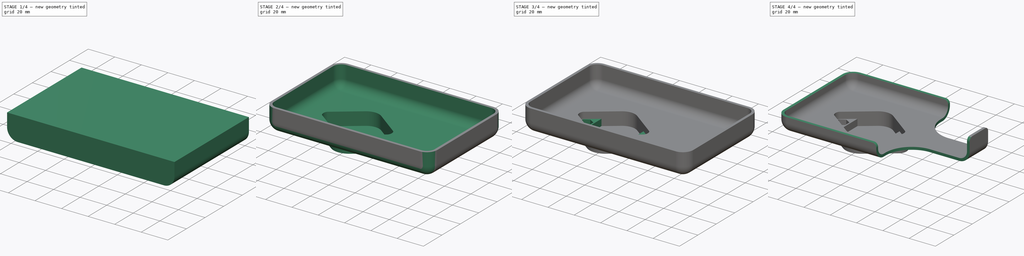
[diagram: build sequence overview — one tinted view per stage of 4, left to right]
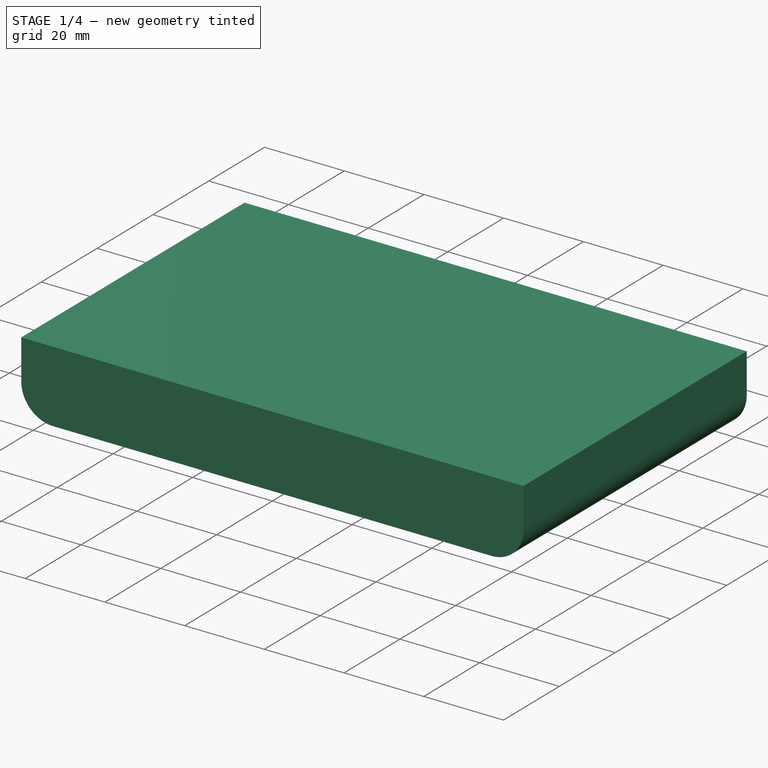
[diagram: stage 1 of 4 — iso view after this stage's code; geometry added in this stage tinted green]
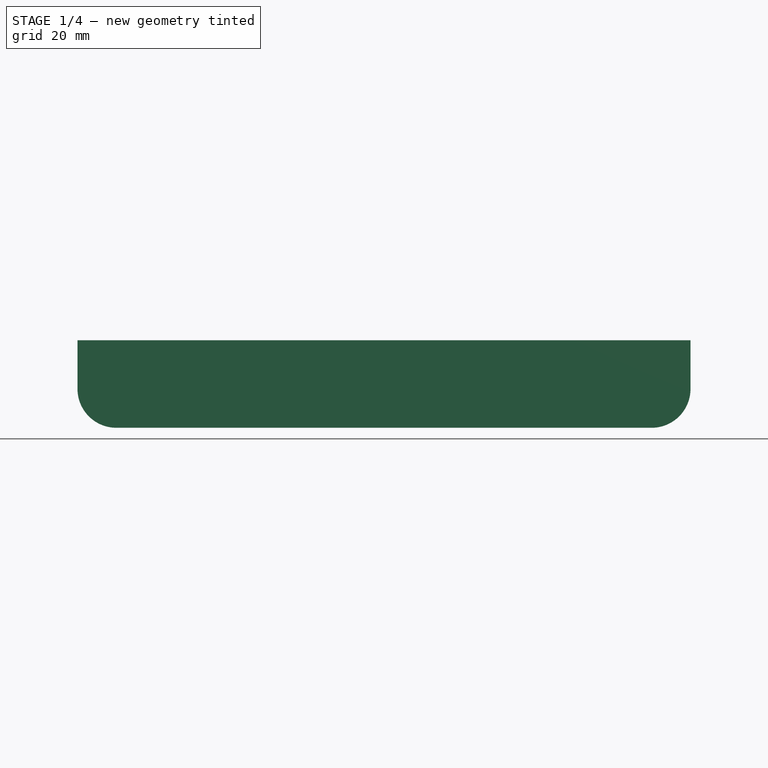
[diagram: stage 1 of 4 — front view after this stage's code; geometry added in this stage tinted green]
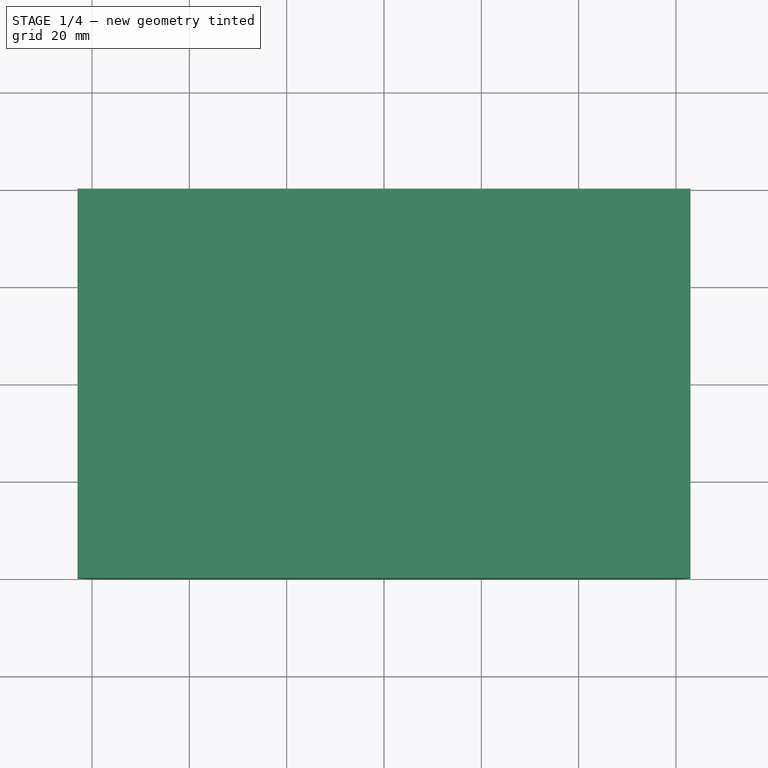
[diagram: stage 1 of 4 — top view after this stage's code; geometry added in this stage tinted green]
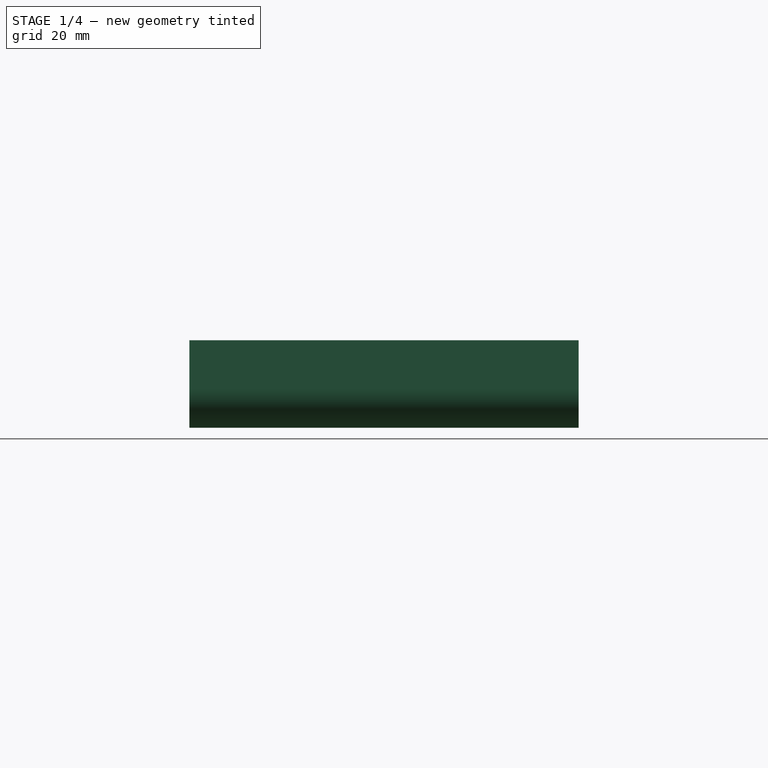
[diagram: stage 1 of 4 — right view after this stage's code; geometry added in this stage tinted green]
FCSTD DOCUMENT  (FreeCAD 0.21R33771 (Git))
Label: ex91
License: All rights reserved
LicenseURL: https://en.wikipedia.org/wiki/All_rights_reserved
objects: Sketcher::SketchObject×6, PartDesign::Fillet×4, PartDesign::Pocket×4, PartDesign::Pad×3, PartDesign::Thickness×1, PartDesign::Body×1
note: 31 computed .brp shape members not serialized (recipe doc carries the construction recipe); baked Part::Feature solids carry a one-line shape summary decoded from their .brp

FEATURE [Sketcher::SketchObject] Sketch
  FullyConstrained = true
  MapMode = 5
  Support = -> [XY_Plane]
  sketch-geometry (5):
    g0: LineSegment StartX=-63 StartY=-40 StartZ=0 EndX=-63 EndY=40 EndZ=0
    g1: LineSegment StartX=-63 StartY=40 StartZ=0 EndX=63 EndY=40 EndZ=0
    g2: LineSegment StartX=63 StartY=40 StartZ=0 EndX=63 EndY=-40 EndZ=0
    g3: LineSegment StartX=63 StartY=-40 StartZ=0 EndX=-63 EndY=-40 EndZ=0
    g4: GeomPoint X=0 Y=0 Z=0
  constraints (12):
    c: Coincident(g0,g1)
    c: Coincident(g1,g2)
    c: Coincident(g2,g3)
    c: Coincident(g3,g0)
    c: Horizontal(g1)
    c: Horizontal(g3)
    c: Vertical(g0)
    c: Vertical(g2)
    c: Symmetric(g1,g0,g4)
    c: Coincident(g4,g-1)
    c: DistanceX(g3,g3) = 126
    c: DistanceY(g0,g0) = 80
FEATURE [PartDesign::Pad] Pad
  Direction = (0,0,1)
  Length = 18
  Length2 = 10
  Profile = -> Sketch
  ReferenceAxis = -> Sketch [N_Axis]
  Type = 0
FEATURE [PartDesign::Fillet] Fillet
  Base = -> Pad [Edge9]
  BaseFeature = -> Pad
  Radius = 8
  SupportTransform = false
  UseAllEdges = false
FEATURE [PartDesign::Fillet] Fillet001
  Base = -> Fillet [Edge13]
  BaseFeature = -> Fillet
  Radius = 8
  SupportTransform = false
  UseAllEdges = false
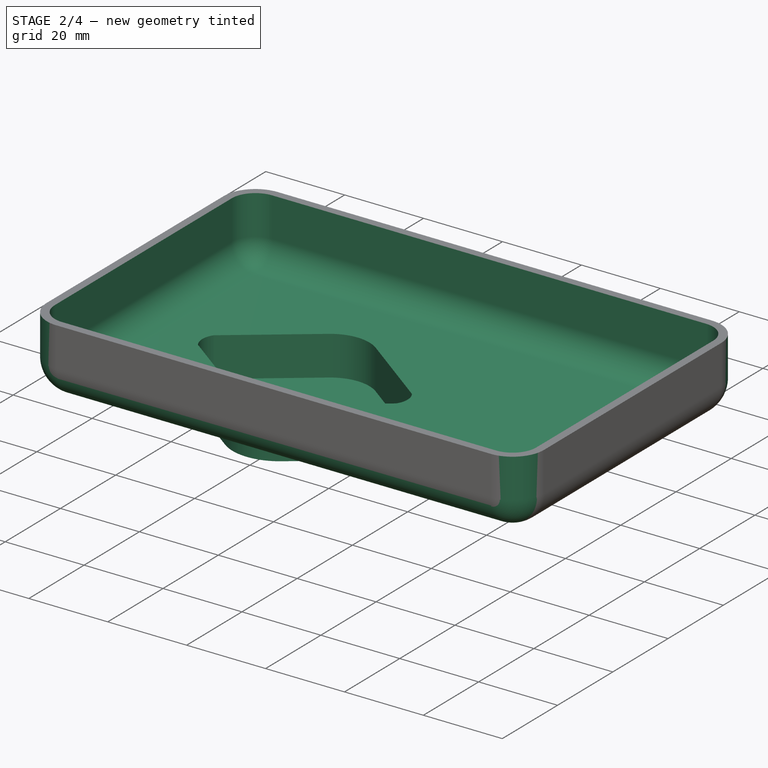
[diagram: stage 2 of 4 — iso view after this stage's code; geometry added in this stage tinted green]
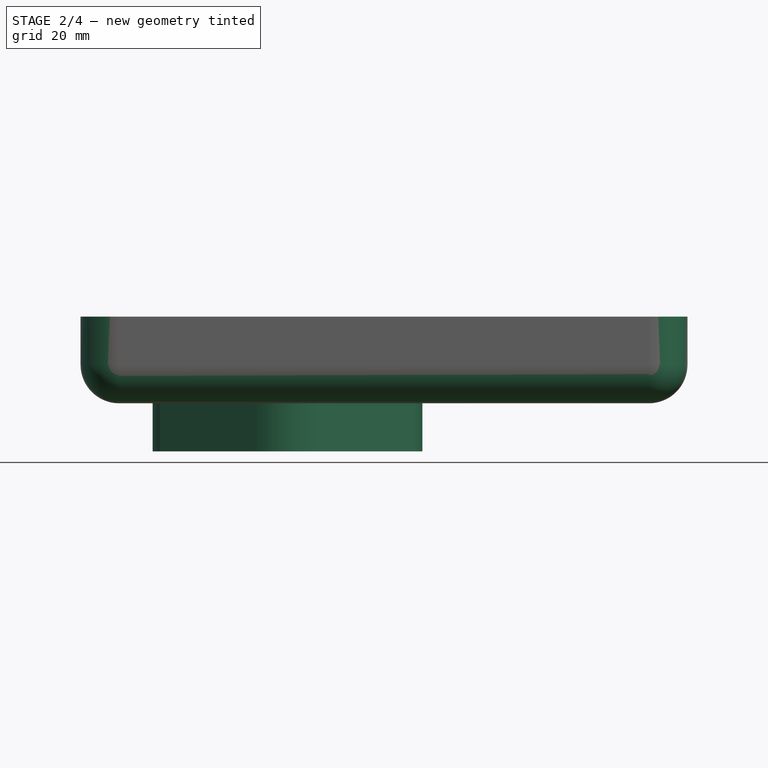
[diagram: stage 2 of 4 — front view after this stage's code; geometry added in this stage tinted green]
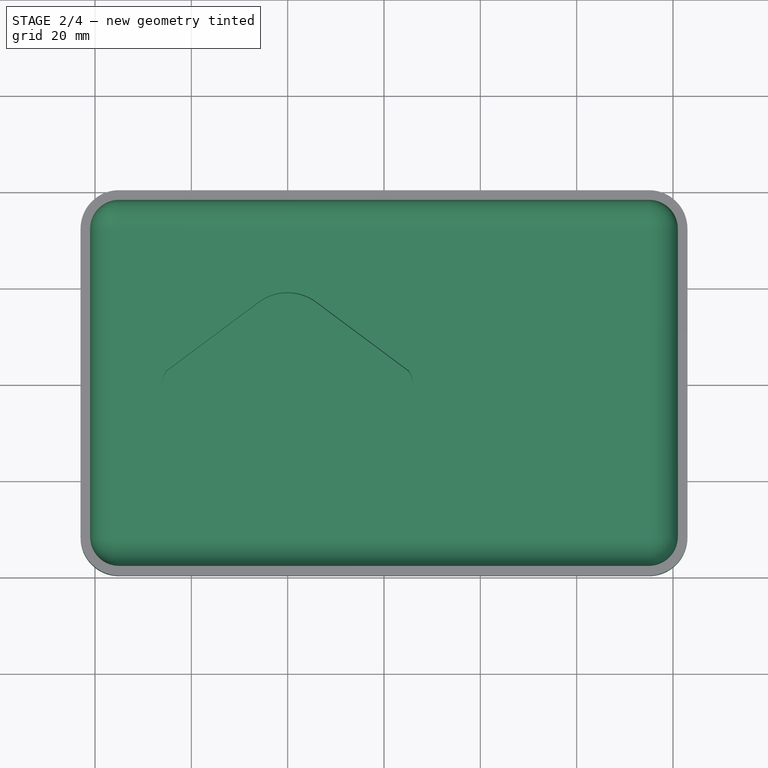
[diagram: stage 2 of 4 — top view after this stage's code; geometry added in this stage tinted green]
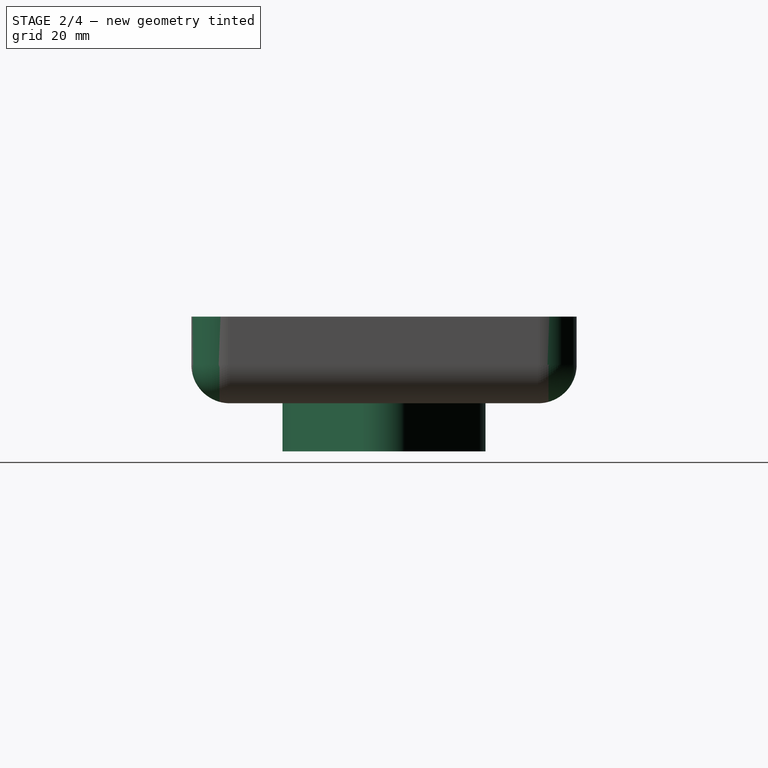
[diagram: stage 2 of 4 — right view after this stage's code; geometry added in this stage tinted green]
FEATURE [PartDesign::Fillet] Fillet002
  Base = -> Fillet001 [Edge1,Edge9]
  BaseFeature = -> Fillet001
  Radius = 8
  SupportTransform = false
  UseAllEdges = false
FEATURE [Sketcher::SketchObject] Sketch001
  ExternalGeometry = -> [Fillet002]
  FullyConstrained = false
  MapMode = 5
  Support = -> [XY_Plane]
  sketch-geometry (8):
    g0: ArcOfCircle CenterX=-41.034 CenterY=0 CenterZ=0 NormalX=0 NormalY=0 NormalZ=1 AngleXU=0 Radius=7 StartAngle=2.48373 EndAngle=3.79946
    g1: ArcOfCircle CenterX=0.966026 CenterY=0 CenterZ=0 NormalX=0 NormalY=0 NormalZ=1 AngleXU=0 Radius=7 StartAngle=5.62532 EndAngle=6.94105
    g2: ArcOfCircle CenterX=-20.034 CenterY=-9.07451 CenterZ=0 NormalX=0 NormalY=0 NormalZ=1 AngleXU=0 Radius=12 StartAngle=4.07253 EndAngle=5.35225
    g3: LineSegment StartX=-46.5731 StartY=4.28 StartZ=0 EndX=-27.199 EndY=18.7007 EndZ=0
    g4: LineSegment StartX=-46.5731 StartY=-4.28 StartZ=0 EndX=-27.199 EndY=-18.7007 EndZ=0
    g5: LineSegment StartX=-12.869 StartY=-18.7007 StartZ=0 EndX=6.50512 EndY=-4.28 EndZ=0
    g6: LineSegment StartX=-12.869 StartY=18.7007 StartZ=0 EndX=6.50512 EndY=4.28 EndZ=0
    g7: ArcOfCircle CenterX=-20.034 CenterY=9.07451 CenterZ=0 NormalX=0 NormalY=0 NormalZ=1 AngleXU=0 Radius=12 StartAngle=0.930936 EndAngle=2.21066
  constraints (26):
    c: PointOnObject(g0,g-1)
    c: Equal(g0,g1)
    c: Radius(g0) = 7
    c: Equal(g3,g5)
    c: Equal(g5,g6)
    c: Equal(g6,g4)
    c: Horizontal(g3,g6)
    c: Horizontal(g5,g4)
    c: Vertical(g3,g4)
    c: DistanceX(g0,g1) = 42
    c: Coincident(g7,g3)
    c: Tangent(g7,g6) = 1.5708
    c: Coincident(g2,g5)
    c: Coincident(g2,g4)
    c: Coincident(g0,g4)
    c: Coincident(g0,g3)
    c: Coincident(g1,g6)
    c: Coincident(g1,g5)
    c: DistanceY(g0,g0) = 8.56
    c: Radius(g7) = 12
    c: Radius(g2) = 12
    c: PointOnObject(g1,g-1)
    c: Vertical(g7,g2)
    c: Distance(g3,g6) = 14.33
    c: Distance(g2,g2) = 14.33
    c: Distance(g1,g1) = 8.56
FEATURE [PartDesign::Pad] Pad001
  BaseFeature = -> Fillet002
  Direction = (0,0,1)
  Length = 10
  Length2 = 10
  Profile = -> Sketch001
  ReferenceAxis = -> Sketch001 [N_Axis]
  Reversed = true
  Type = 0
FEATURE [PartDesign::Thickness] Thickness
  Base = -> Pad001 [Face2]
  BaseFeature = -> Pad001
  Intersection = false
  Join = 1
  Mode = 0
  Reversed = true
  SupportTransform = false
  Value = 2
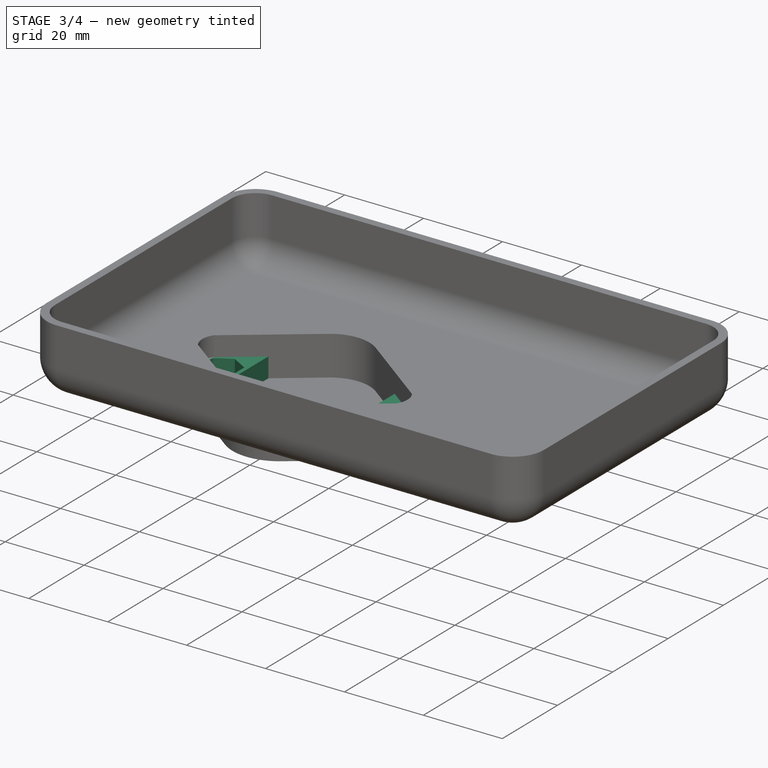
[diagram: stage 3 of 4 — iso view after this stage's code; geometry added in this stage tinted green]
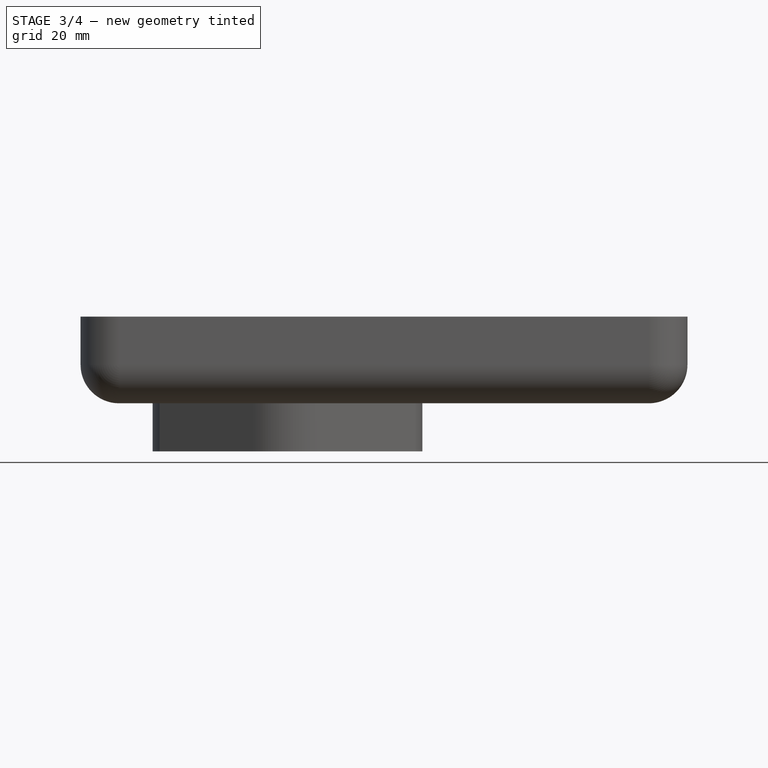
[diagram: stage 3 of 4 — front view after this stage's code; geometry added in this stage tinted green]
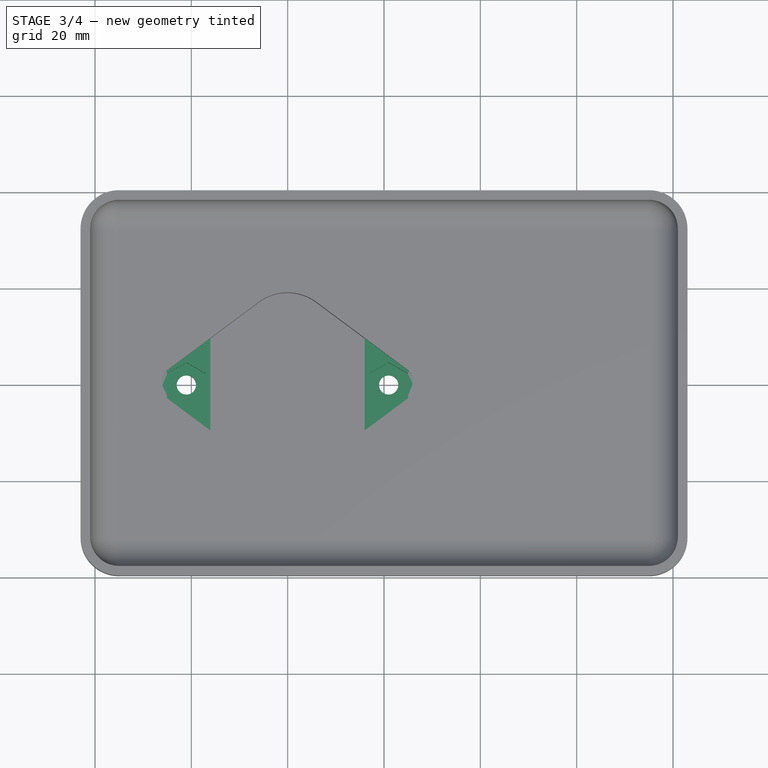
[diagram: stage 3 of 4 — top view after this stage's code; geometry added in this stage tinted green]
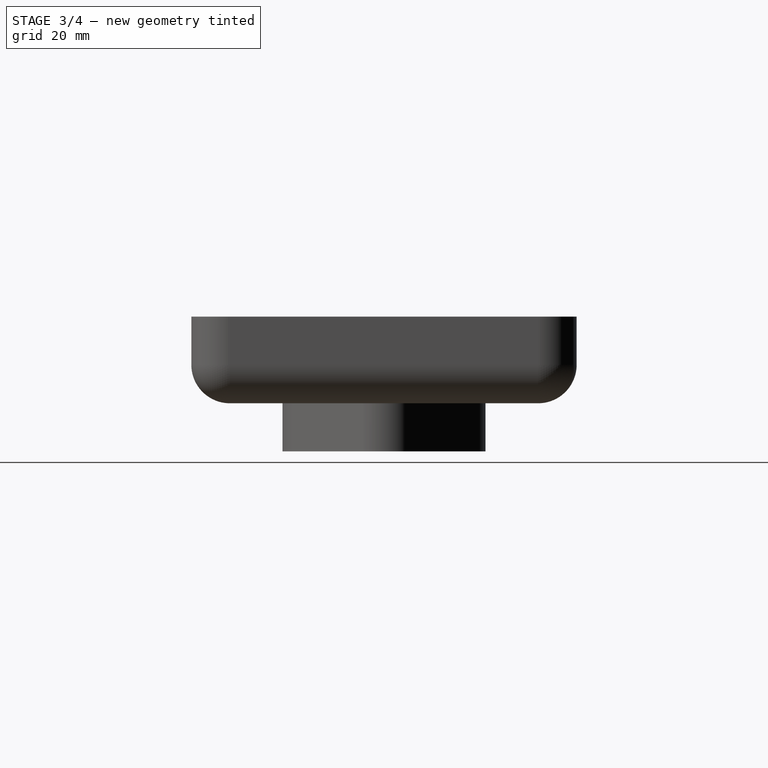
[diagram: stage 3 of 4 — right view after this stage's code; geometry added in this stage tinted green]
FEATURE [Sketcher::SketchObject] Sketch003
  ExternalGeometry = -> [Thickness]
  FullyConstrained = false
  MapMode = 5
  Support = -> [XY_Plane]
  sketch-geometry (8):
    g0: LineSegment StartX=-36.034 StartY=9.63132 StartZ=0 EndX=-36.034 EndY=-9.63132 EndZ=0
    g1: LineSegment StartX=-4.03397 StartY=9.63132 StartZ=0 EndX=-4.03397 EndY=-9.63132 EndZ=0
    g2: LineSegment StartX=-4.03397 StartY=9.63132 StartZ=0 EndX=5.07162 EndY=2.85379 EndZ=0
    g3: LineSegment StartX=5.07162 StartY=-2.85379 StartZ=0 EndX=-4.03397 EndY=-9.63132 EndZ=0
    g4: LineSegment StartX=-45.1396 StartY=-2.85378 StartZ=0 EndX=-36.034 EndY=-9.63132 EndZ=0
    g5: ArcOfCircle CenterX=-41.034 CenterY=8.47544e-07 CenterZ=0 NormalX=0 NormalY=0 NormalZ=1 AngleXU=0 Radius=5 StartAngle=2.53416 EndAngle=3.74902
    g6: ArcOfCircle CenterX=0.966026 CenterY=-1.7e-15 CenterZ=0 NormalX=0 NormalY=0 NormalZ=1 AngleXU=0 Radius=5 StartAngle=5.67576 EndAngle=6.89061
    g7: LineSegment StartX=-45.1396 StartY=2.85379 StartZ=0 EndX=-36.034 EndY=9.63132 EndZ=0
  constraints (20):
    c: PointOnObject(g0,g-8)
    c: PointOnObject(g0,g-7)
    c: PointOnObject(g1,g-5)
    c: PointOnObject(g1,g-6)
    c: Vertical(g1)
    c: Tangent(g-3,g1)
    c: Tangent(g0,g-4)
    c: Vertical(g0)
    c: Coincident(g2,g1)
    c: Coincident(g2,g-5)
    c: Coincident(g3,g-6)
    c: Coincident(g3,g1)
    c: Coincident(g4,g0)
    c: Coincident(g5,g4)
    c: Tangent(g5,g-4)
    c: Coincident(g6,g2)
    c: Coincident(g6,g3)
    c: Tangent(g6,g-3)
    c: Coincident(g7,g5)
    c: Coincident(g7,g0)
FEATURE [PartDesign::Pad] Pad002
  BaseFeature = -> Thickness
  Direction = (0,0,1)
  Length = 10
  Length2 = -3
  Profile = -> Sketch003
  ReferenceAxis = -> Sketch003 [N_Axis]
  Reversed = true
  Type = 4
FEATURE [Sketcher::SketchObject] Sketch004
  ExternalGeometry = -> [Pad002]
  FullyConstrained = true
  MapMode = 5
  Support = -> [XY_Plane]
  sketch-geometry (14):
    g0: LineSegment StartX=-37.034 StartY=-2.3094 StartZ=0 EndX=-37.034 EndY=2.3094 EndZ=0
    g1: LineSegment StartX=-37.034 StartY=2.3094 StartZ=0 EndX=-41.034 EndY=4.6188 EndZ=0
    g2: LineSegment StartX=-41.034 StartY=4.6188 StartZ=0 EndX=-45.034 EndY=2.3094 EndZ=0
    g3: LineSegment StartX=-45.034 StartY=2.3094 StartZ=0 EndX=-45.034 EndY=-2.3094 EndZ=0
    g4: LineSegment StartX=-45.034 StartY=-2.3094 StartZ=0 EndX=-41.034 EndY=-4.6188 EndZ=0
    g5: LineSegment StartX=-41.034 StartY=-4.6188 StartZ=0 EndX=-37.034 EndY=-2.3094 EndZ=0
    g6: Circle CenterX=-41.034 CenterY=0 CenterZ=0 NormalX=0 NormalY=0 NormalZ=1 AngleXU=0 Radius=4.6188
    g7: LineSegment StartX=4.96603 StartY=-2.3094 StartZ=0 EndX=4.96603 EndY=2.3094 EndZ=0
    g8: LineSegment StartX=4.96603 StartY=2.3094 StartZ=0 EndX=0.966026 EndY=4.6188 EndZ=0
    g9: LineSegment StartX=0.966026 StartY=4.6188 StartZ=0 EndX=-3.03397 EndY=2.3094 EndZ=0
    g10: LineSegment StartX=-3.03397 StartY=2.3094 StartZ=0 EndX=-3.03397 EndY=-2.3094 EndZ=0
    g11: LineSegment StartX=-3.03397 StartY=-2.3094 StartZ=0 EndX=0.966026 EndY=-4.6188 EndZ=0
    g12: LineSegment StartX=0.966026 StartY=-4.6188 StartZ=0 EndX=4.96603 EndY=-2.3094 EndZ=0
    g13: Circle CenterX=0.966026 CenterY=0 CenterZ=0 NormalX=0 NormalY=0 NormalZ=1 AngleXU=0 Radius=4.6188
  constraints (32):
    c: Coincident(g0,g1)
    c: Coincident(g1,g2)
    c: Coincident(g2,g3)
    c: Coincident(g3,g4)
    c: Coincident(g4,g5)
    c: Coincident(g5,g0)
    c: Equal(g0, g1-g5) x5
    c: PointOnObject(g0,g6)
    c: PointOnObject(g1,g6)
    c: PointOnObject(g2,g6)
    c: PointOnObject(g3,g6)
    c: PointOnObject(g4,g6)
    c: PointOnObject(g5,g6)
    c: Coincident(g6,g-4)
    c: Coincident(g7,g8)
    c: Coincident(g8,g9)
    c: Coincident(g9,g10)
    c: Coincident(g10,g11)
    c: Coincident(g11,g12)
    c: Coincident(g12,g7)
    c: Equal(g7, g8-g12) x5
    c: PointOnObject(g7,g13)
    c: PointOnObject(g8,g13)
    c: PointOnObject(g9,g13)
    c: PointOnObject(g10,g13)
    c: PointOnObject(g11,g13)
    c: PointOnObject(g12,g13)
    c: Coincident(g13,g-3)
    c: Vertical(g8,g13)
    c: Perpendicular(g-1,g3)
    c: Equal(g6,g13)
    c: DistanceX(g3,g0) = 8
FEATURE [PartDesign::Pocket] Pocket
  BaseFeature = -> Pad002
  Direction = (0,0,-1)
  Length = 7
  Length2 = 5
  Profile = -> Sketch004
  ReferenceAxis = -> Sketch004 [N_Axis]
  Type = 0
FEATURE [Sketcher::SketchObject] Sketch005
  ExternalGeometry = -> [Pocket]
  FullyConstrained = true
  MapMode = 5
  Placement = pos=(0,0,-7) rot=(0,0,1;0rad)
  Support = -> [Pocket]
  sketch-geometry (2):
    g0: Circle CenterX=0.966026 CenterY=0 CenterZ=0 NormalX=0 NormalY=0 NormalZ=1 AngleXU=0 Radius=2
    g1: Circle CenterX=-41.034 CenterY=0 CenterZ=0 NormalX=0 NormalY=0 NormalZ=1 AngleXU=0 Radius=2
  constraints (4):
    c: Coincident(g0,g-3)
    c: Coincident(g1,g-4)
    c: Equal(g1,g0)
    c: Radius(g1) = 2
FEATURE [PartDesign::Pocket] Pocket001
  BaseFeature = -> Pocket
  Direction = (0,0,-1)
  Length = 5
  Length2 = 5
  Profile = -> Sketch005
  ReferenceAxis = -> Sketch005 [N_Axis]
  Type = 1
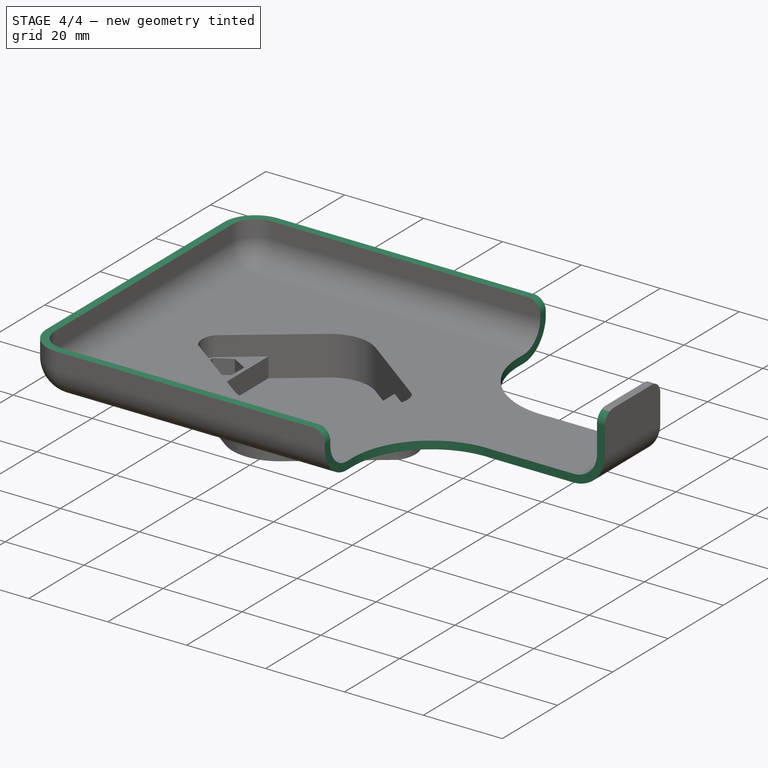
[diagram: stage 4 of 4 — iso view after this stage's code; geometry added in this stage tinted green]
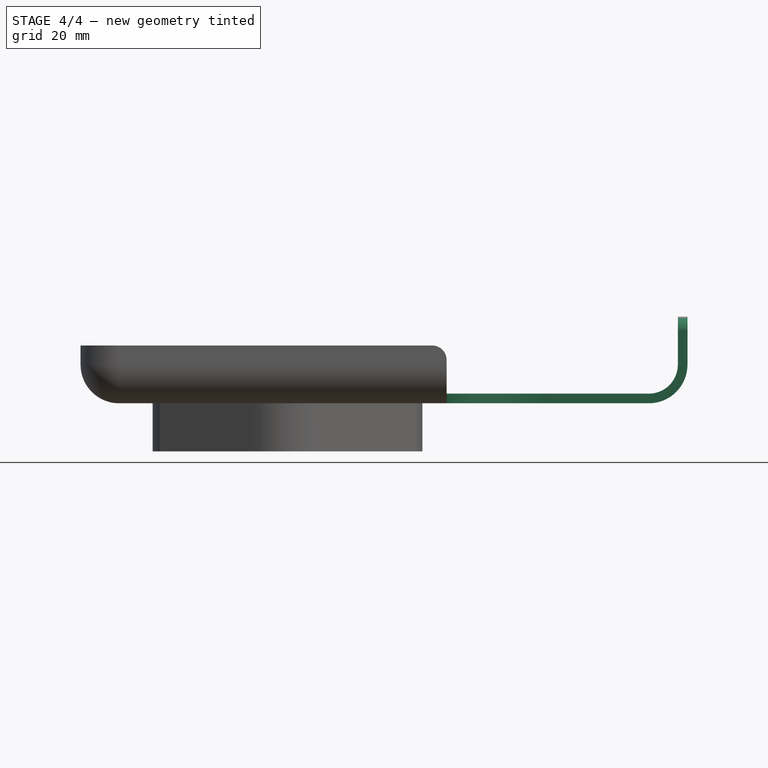
[diagram: stage 4 of 4 — front view after this stage's code; geometry added in this stage tinted green]
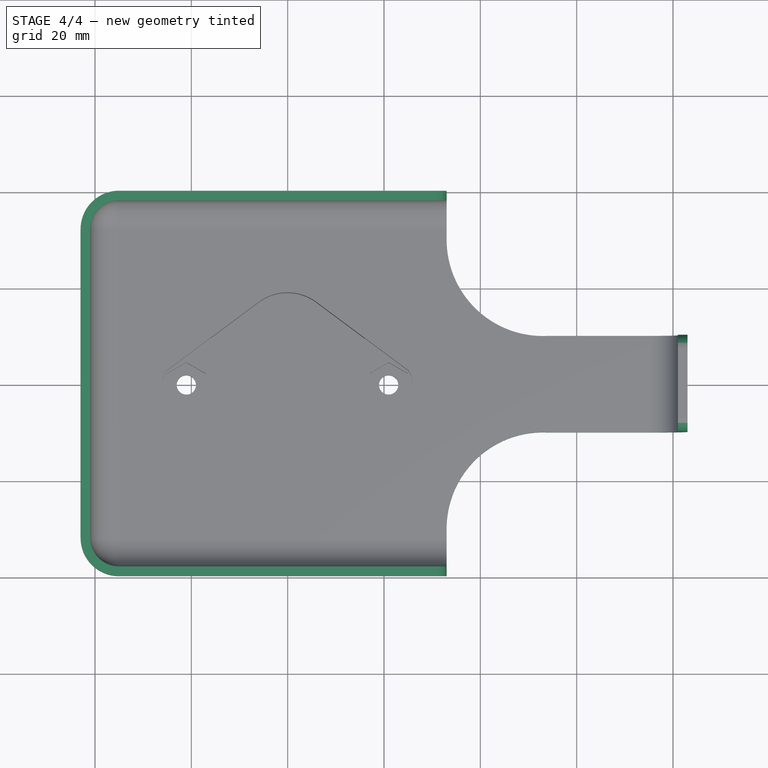
[diagram: stage 4 of 4 — top view after this stage's code; geometry added in this stage tinted green]
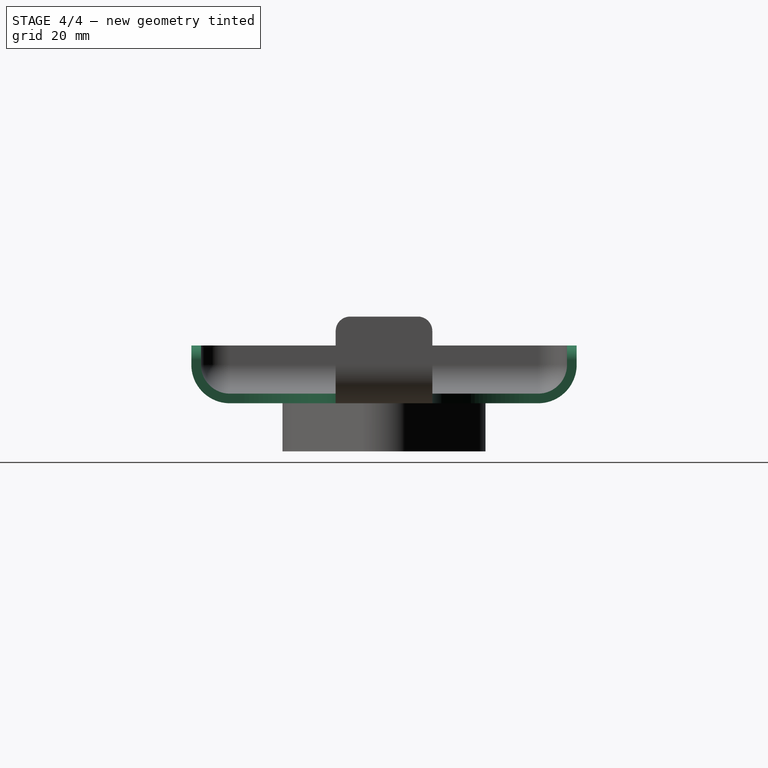
[diagram: stage 4 of 4 — right view after this stage's code; geometry added in this stage tinted green]
FEATURE [Sketcher::SketchObject] Sketch006
  ExternalGeometry = -> [Pocket001]
  FullyConstrained = false
  MapMode = 5
  Support = -> [XY_Plane]
  sketch-geometry (13):
    g0: ArcOfCircle CenterX=33 CenterY=30 CenterZ=0 NormalX=0 NormalY=0 NormalZ=1 AngleXU=0 Radius=20 StartAngle=3.14159 EndAngle=4.76819
    g1: ArcOfCircle CenterX=33 CenterY=-30 CenterZ=0 NormalX=0 NormalY=0 NormalZ=1 AngleXU=0 Radius=20 StartAngle=1.51499 EndAngle=3.14159
    g2: LineSegment StartX=34.1155 StartY=10.0311 StartZ=0 EndX=34.1155 EndY=-10.0311 EndZ=0
    g3: LineSegment StartX=34.1155 StartY=10.0311 StartZ=0 EndX=89.8215 EndY=10.0311 EndZ=0
    g4: LineSegment StartX=34.1155 StartY=-10.0311 StartZ=0 EndX=89.8215 EndY=-10.0311 EndZ=0
    g5: LineSegment StartX=110.137 StartY=54.3289 StartZ=0 EndX=110.137 EndY=-44.3562 EndZ=0
    g6: LineSegment StartX=89.8215 StartY=10.0311 StartZ=0 EndX=89.8215 EndY=-10.0311 EndZ=0
    g7: LineSegment StartX=13 StartY=-30 StartZ=0 EndX=13 EndY=-55.4648 EndZ=0
    g8: LineSegment StartX=13 StartY=-55.4648 StartZ=0 EndX=34.1969 EndY=-55.4648 EndZ=0
    g9: LineSegment StartX=34.1969 StartY=-55.4648 StartZ=0 EndX=110.137 EndY=-55.4648 EndZ=0
    g10: LineSegment StartX=110.137 StartY=-44.3562 StartZ=0 EndX=110.137 EndY=-55.4648 EndZ=0
    g11: LineSegment StartX=13 StartY=30 StartZ=0 EndX=13 EndY=54.3289 EndZ=0
    g12: LineSegment StartX=13 StartY=54.3289 StartZ=0 EndX=110.137 EndY=54.3289 EndZ=0
  constraints (29):
    c: Radius(g0) = 20
    c: Distance(g0,g-3) = 30
    c: DistanceY(g-1,g0) = 30
    c: Equal(g1,g0)
    c: DistanceY(g1,g-1) = 30
    c: Distance(g1,g-3) = 30
    c: Perpendicular(g-1,g2)
    c: Coincident(g3,g2)
    c: Horizontal(g3)
    c: Coincident(g4,g2)
    c: Horizontal(g4)
    c: Vertical(g5)
    c: Coincident(g6,g3)
    c: Coincident(g6,g4)
    c: Coincident(g1,g2)
    c: Coincident(g0,g2)
    c: Coincident(g7,g8)
    c: Horizontal(g8)
    c: Vertical(g7)
    c: Coincident(g9,g8)
    c: Horizontal(g9)
    c: Coincident(g10,g5)
    c: Coincident(g10,g9)
    c: Vertical(g10)
    c: Coincident(g11,g12)
    c: Horizontal(g12)
    c: Vertical(g11)
    c: Vertical(g6)
    c: Coincident(g12,g5)
FEATURE [PartDesign::Pocket] Pocket002
  BaseFeature = -> Pocket001
  Direction = (0,0,-1)
  Length = 5
  Length2 = 5
  Midplane = true
  Profile = -> Sketch006
  ReferenceAxis = -> Sketch006 [N_Axis]
  Type = 1
FEATURE [PartDesign::Pocket] Pocket003
  BaseFeature = -> Pocket002
  Direction = (0,0,-1)
  Length = 6
  Length2 = 5
  Profile = -> Pocket002 [Face5]
  Type = 0
FEATURE [PartDesign::Fillet] Fillet003
  Base = -> Pocket003 [Edge14,Edge23,Edge92,Edge85]
  BaseFeature = -> Pocket003
  Radius = 3
  SupportTransform = false
  UseAllEdges = false
FEATURE [PartDesign::Body] Body
  Group = -> [Sketch,Pad,Fillet,Fillet001,Fillet002,Sketch001,Pad001,Thickness,Sketch003,Pad002,Sketch004,Pocket,Sketch005,Pocket001,Sketch006,Pocket002,Pocket003,Fillet003]
  Origin = -> Origin
  Tip = -> Fillet003
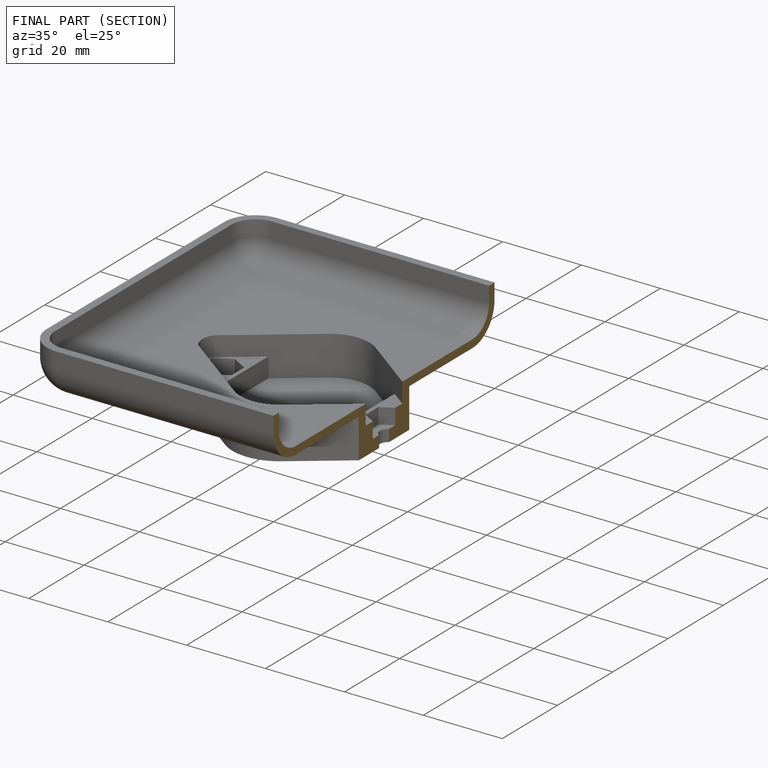
[diagram: finished part — half-section view (interior)]
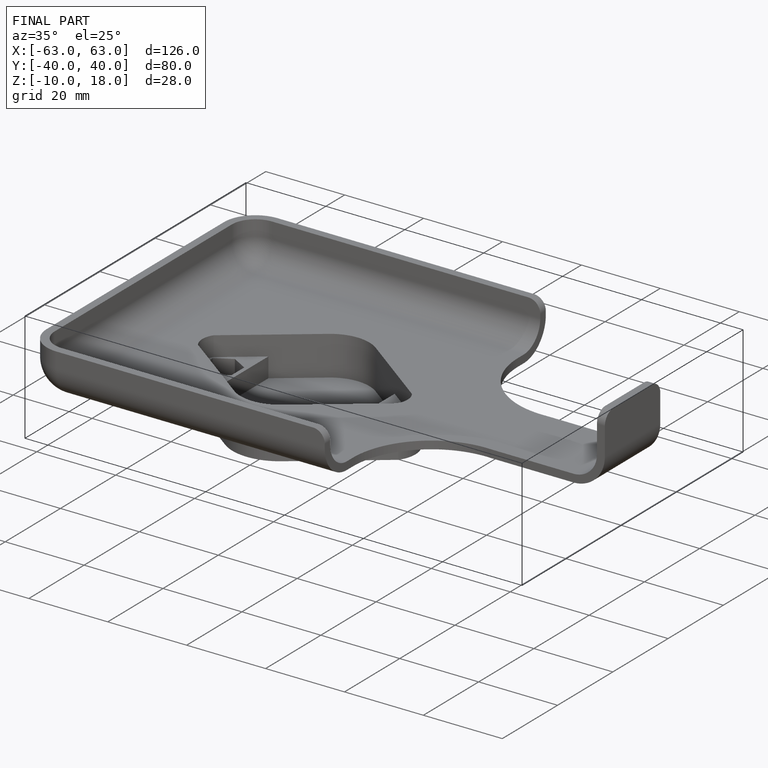
[diagram: finished part — iso view with bounding-box wireframe]
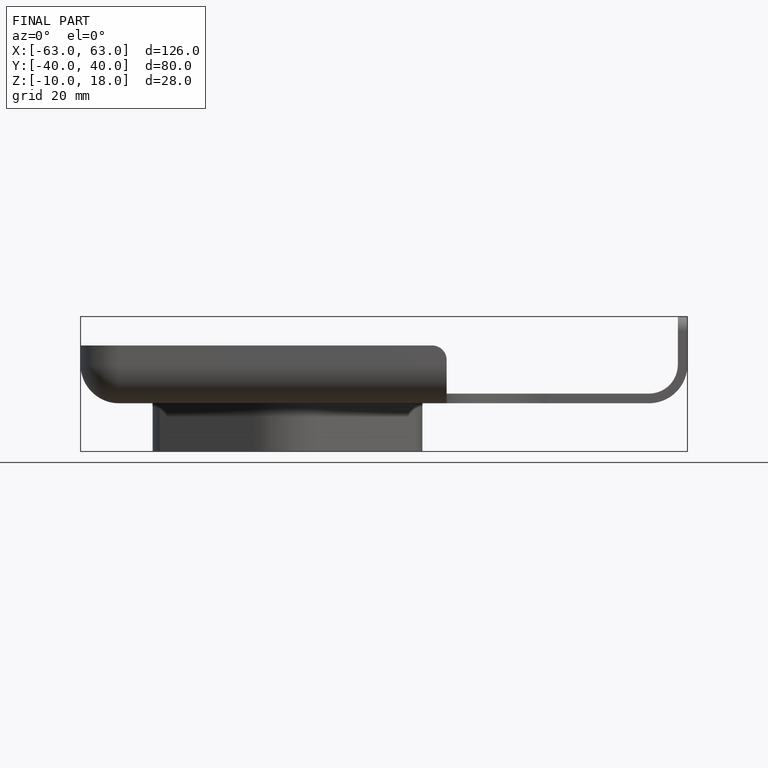
[diagram: finished part — front view with bounding-box wireframe]
